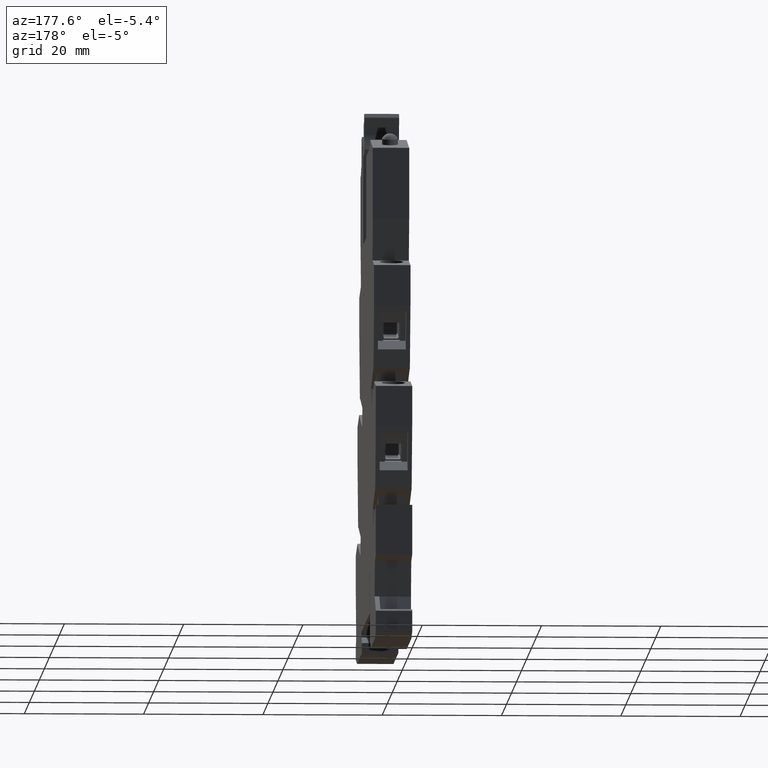
[diagram: clean part render]
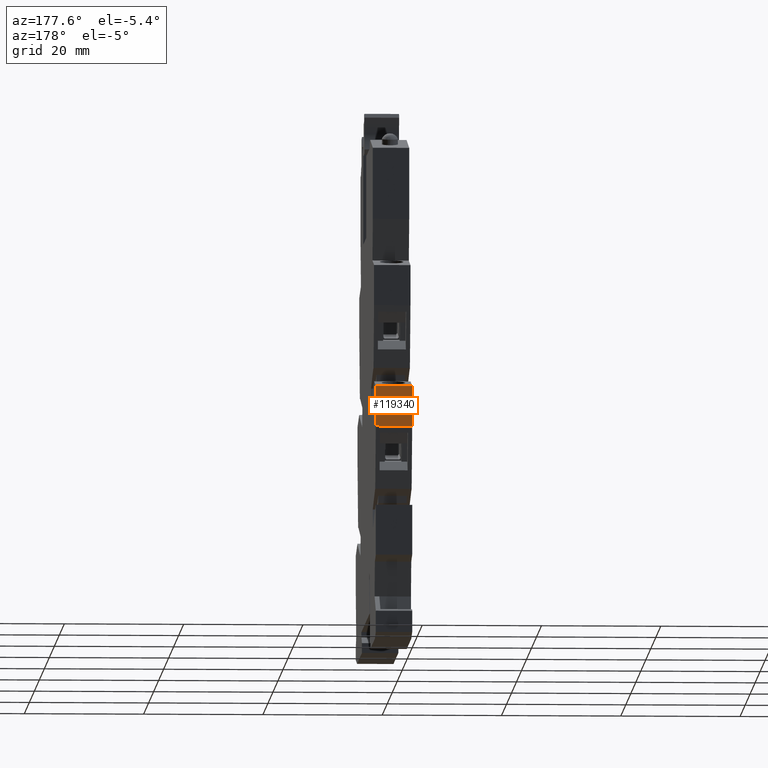
[diagram: same view with one face highlighted and labeled with its STEP entity id]
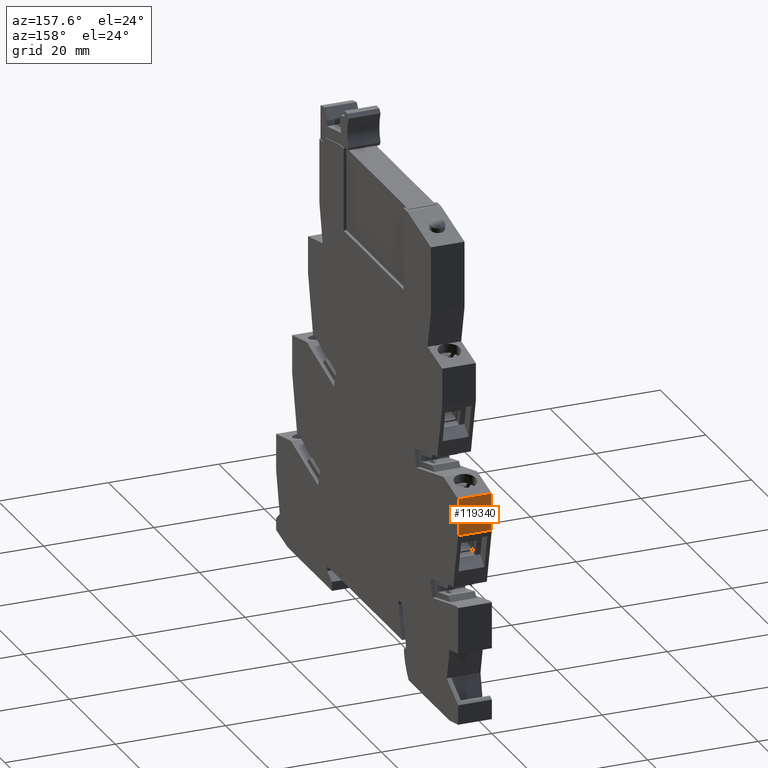
[diagram: same view with one face highlighted and labeled with its STEP entity id]
A machine part, auxiliary view. The second image highlights one B-rep face of the part: STEP entity #119340.
A second angle (auxiliary view) of the same face is appended — the face is thin or edge-on in the first view.
In plain terms, the highlighted planar face has unit normal (0, -1, 0).
Its self-contained STEP definition (entity closure, byte-faithful):
#3400=CARTESIAN_POINT('',(32.3989505230052,46.6331479428671,
-5.23669996255194E-12));
#3410=VERTEX_POINT('',#3400);
#3440=CARTESIAN_POINT('',(32.3989505230048,43.5389695909252,
-6.94377888521558E-12));
#3450=DIRECTION('',(-1.26558704972732E-13,-1.,1.1332085511113E-26));
#3460=VECTOR('',#3450,1.);
#3470=LINE('',#3440,#3460);
#3480=CARTESIAN_POINT('',(32.3989505230044,39.8995198598676,
-5.23669996255194E-12));
#3490=VERTEX_POINT('',#3480);
#3500=EDGE_CURVE('',#3410,#3490,#3470,.T.);
#33260=CARTESIAN_POINT('',(32.398950523005,46.6331479428671,
-6.10000000000665));
#33270=VERTEX_POINT('',#33260);
#33300=CARTESIAN_POINT('',(32.3989505230056,46.6331479428671,
-5.30000000000362));
#33310=DIRECTION('',(1.0020697770065E-13,-1.35851708640374E-27,1.));
#33320=VECTOR('',#33310,1.);
#33330=LINE('',#33300,#33320);
#33340=EDGE_CURVE('',#33270,#3410,#33330,.T.);
#48260=CARTESIAN_POINT('',(32.3989505230042,39.8995198598676,
-6.10000000000665));
#48270=VERTEX_POINT('',#48260);
#48300=CARTESIAN_POINT('',(32.3989505229954,-29.4574266626326,
-6.10000000000665));
#48310=DIRECTION('',(-1.26558704972732E-13,-1.,5.5507211519745E-27));
#48320=VECTOR('',#48310,1.);
#48330=LINE('',#48300,#48320);
#48340=EDGE_CURVE('',#33270,#48270,#48330,.T.);
#80550=CARTESIAN_POINT('',(32.3989505230047,39.8995198598675,
-5.30000000000362));
#80560=DIRECTION('',(1.0020697770065E-13,-1.30112745554891E-27,1.));
#80570=VECTOR('',#80560,1.);
#80580=LINE('',#80550,#80570);
#80590=EDGE_CURVE('',#48270,#3490,#80580,.T.);
#119230=CARTESIAN_POINT('',(32.3989505230052,46.6331479428671,
-4.46576109425223E-12));
#119240=DIRECTION('',(-1.,1.26558704972732E-13,3.74127829830043E-14));
#119250=DIRECTION('',(1.26558704972732E-13,1.,-5.87947893422535E-27));
#119260=AXIS2_PLACEMENT_3D('',#119230,#119240,#119250);
#119270=PLANE('',#119260);
#119280=ORIENTED_EDGE('',*,*,#3500,.T.);
#119290=ORIENTED_EDGE('',*,*,#33340,.T.);
#119300=ORIENTED_EDGE('',*,*,#48340,.F.);
#119310=ORIENTED_EDGE('',*,*,#80590,.F.);
#119320=EDGE_LOOP('',(#119310,#119300,#119290,#119280));
#119330=FACE_OUTER_BOUND('',#119320,.T.);
#119340=ADVANCED_FACE('',(#119330),#119270,.F.);